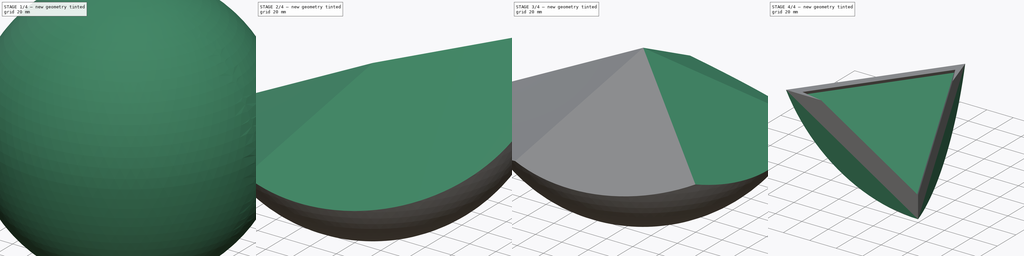
[diagram: build sequence overview — one tinted view per stage of 4, left to right]
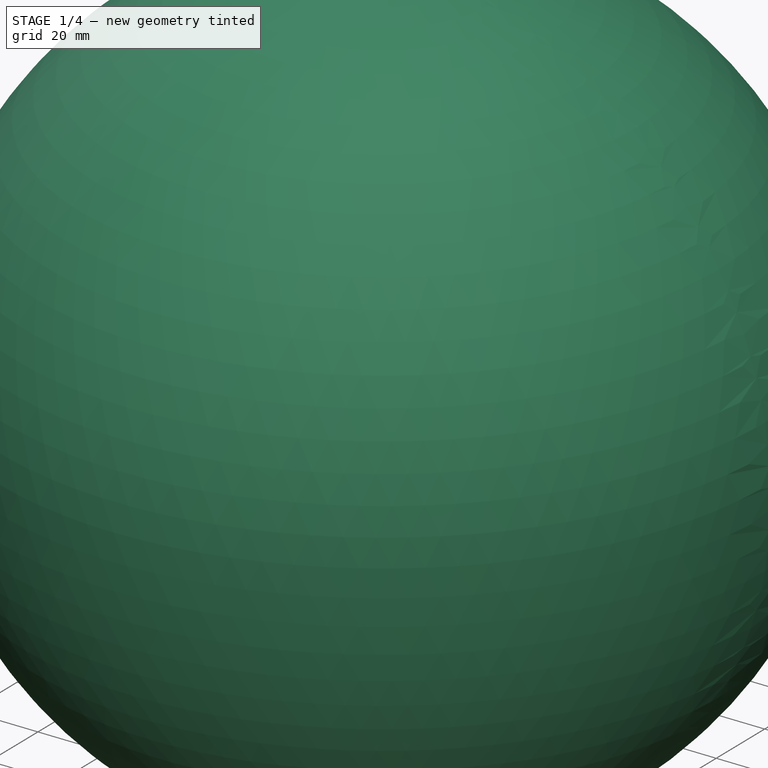
[diagram: stage 1 of 4 — iso view after this stage's code; geometry added in this stage tinted green]
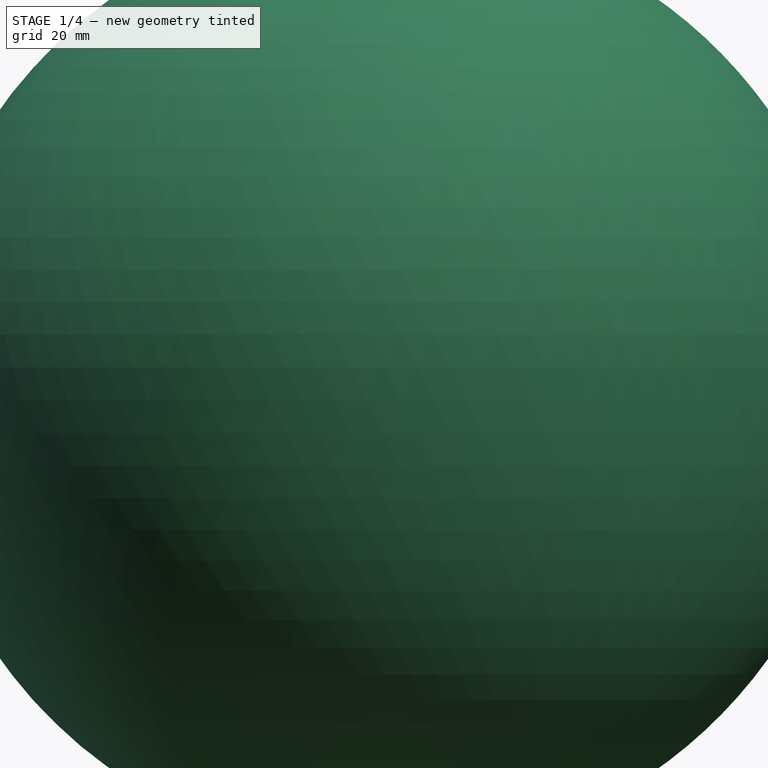
[diagram: stage 1 of 4 — front view after this stage's code; geometry added in this stage tinted green]
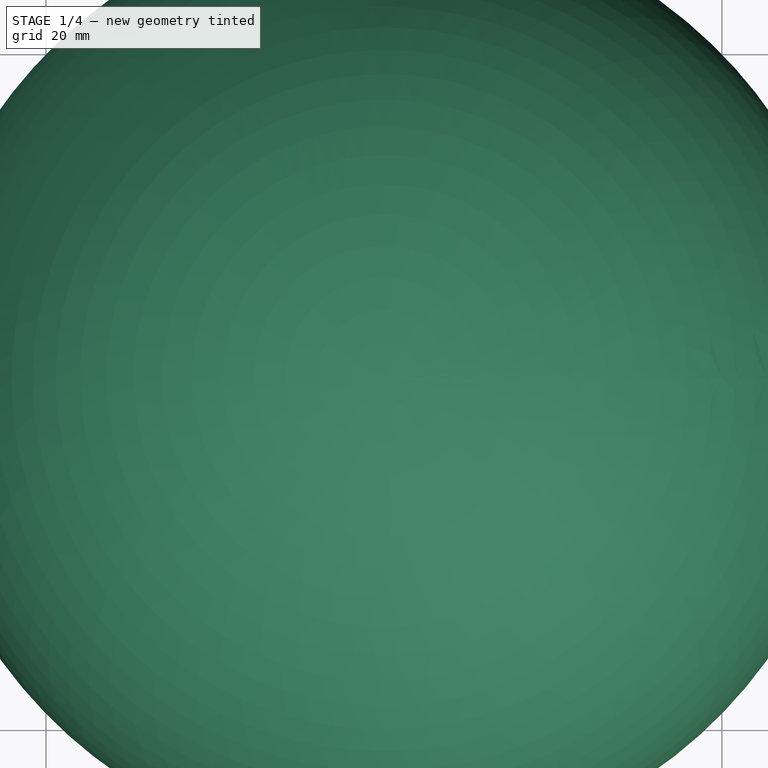
[diagram: stage 1 of 4 — top view after this stage's code; geometry added in this stage tinted green]
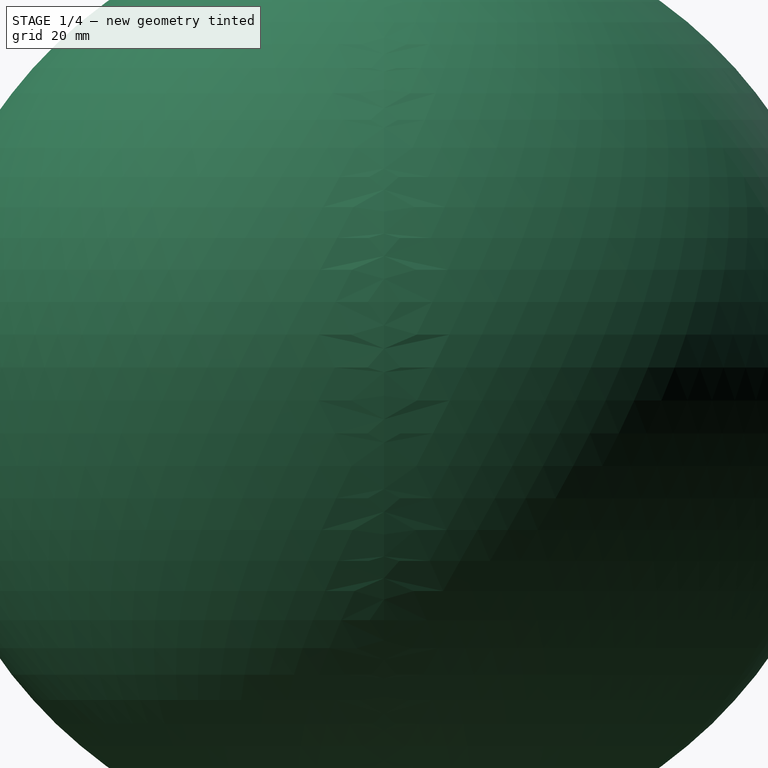
[diagram: stage 1 of 4 — right view after this stage's code; geometry added in this stage tinted green]
FCSTD DOCUMENT  (FreeCAD 0.19R24267 +99 (Git))
Label: frame
License: All rights reserved
LicenseURL: http://en.wikipedia.org/wiki/All_rights_reserved
objects: Part::Feature×17, PartDesign::SubtractiveBox×8, Part::Part2DObjectPython×5, PartDesign::Plane×3, Part::FeaturePython×3, Part::Vertex×2, Spreadsheet::Sheet×1, PartDesign::AdditiveSphere×1, PartDesign::Body×1, Sketcher::SketchObject×1, Part::Extrusion×1, Part::Cut×1, App::Part×1
note: 52 computed .brp shape members not serialized (recipe doc carries the construction recipe); baked Part::Feature solids carry a one-line shape summary decoded from their .brp

FEATURE [Part::Part2DObjectPython] Polygon  label="pentagon1"  # Draft 2D object (typed FeaturePython)
  Area = 0
  ChamferSize = 0
  DrawMode = 0
  FacesNumber = 5
  FilletRadius = 0
  MakeFace = false
  Placement = pos=(0,0,50) rot=(0,0,1;0rad)
  Radius = 100
  expr: Radius = <<Spreadsheet>>.hex_radius
  expr: .Placement.Base.z = <<Spreadsheet>>.hex_radius / 2
FEATURE [Part::Part2DObjectPython] Polygon001  label="pentagon0"  # Draft 2D object (typed FeaturePython)
  Area = 0
  ChamferSize = 0
  DrawMode = 0
  FacesNumber = 5
  FilletRadius = 0
  MakeFace = false
  Placement = pos=(0,0,-50) rot=(0,0,1;0.628319rad)
  Radius = 100
  expr: Radius = <<Spreadsheet>>.hex_radius
  expr: .Placement.Base.z = -<<Spreadsheet>>.hex_radius / 2
FEATURE [Part::Vertex] Vertex  label="center"
  AttacherType = Attacher::AttachEngine3D
  X = 0
  Y = 0
  Z = 0
FEATURE [Spreadsheet::Sheet] Spreadsheet
  cells = A4=hex_radius; C4(hex_radius)==100mm; A5=sphere_radius; C5(sphere_radius)==hex_radius / 2 * sqrt(5)
FEATURE [PartDesign::Plane] DatumPlane
  Length = 79.1419
  MapMode = 13
  Placement = pos=(-16.6667,51.2947,33.3333) rot=(0.865183,0.137031,0.482371;0.63451rad)
  ResizeMode = 0
  Support = -> [Vertex,Polygon]
  Width = 119.482
FEATURE [PartDesign::AdditiveSphere] Sphere002
  Angle1 = -90
  Angle2 = 90
  Angle3 = 360
  AttacherType = Attacher::AttachEngine3D
  Radius = 111.803
  expr: Radius = <<Spreadsheet>>.sphere_radius
FEATURE [PartDesign::Body] Body002
  Group = -> [DatumPlane,Sphere002,Box001,Box002,Box003,Box004,Box005,DatumPlane001,Box006,Box007,DatumPlane002,Box008]
  Origin = -> Origin003
  Tip = -> Box008
FEATURE [Part::Feature] Wire
  shape: bbox 180.9 x 190.2 x 2e-07 mm, 0 faces, 0 solids (baked)
FEATURE [Part::Feature] Edge
  shape: bbox 80.9 x 58.78 x 61.8 mm, 0 faces, 0 solids (baked)
FEATURE [Part::Feature] Edge001
  shape: bbox 30.9 x 95.11 x 61.8 mm, 0 faces, 0 solids (baked)
FEATURE [Part::Feature] Edge002
  shape: bbox 61.8 x 2e-07 x 100 mm, 0 faces, 0 solids (baked)
FEATURE [Part::Feature] Edge003
  shape: bbox 50 x 36.33 x 100 mm, 0 faces, 0 solids (baked)
FEATURE [Part::Feature] Edge004
  shape: bbox 100 x 2e-07 x 61.8 mm, 0 faces, 0 solids (baked)
FEATURE [Part::Feature] Edge005
  shape: bbox 30.9 x 95.11 x 61.8 mm, 0 faces, 0 solids (baked)
FEATURE [Part::Feature] Edge006
  shape: bbox 80.9 x 58.78 x 61.8 mm, 0 faces, 0 solids (baked)
FEATURE [Part::Vertex] Vertex001  label="Vertex"
  AttacherType = Attacher::AttachEngine3D
  Placement = pos=(0,0,-50) rot=(0,0,1;0rad)
  X = 0
  Y = 0
  Z = 0
FEATURE [Part::Feature] Edge007
  shape: bbox 100 x 2e-07 x 2e-07 mm, 0 faces, 0 solids (baked)
FEATURE [Part::Feature] Edge008
  shape: bbox 30.9 x 95.11 x 2e-07 mm, 0 faces, 0 solids (baked)
FEATURE [Part::Feature] Edge009
  shape: bbox 2e-07 x 2e-07 x 61.8 mm, 0 faces, 0 solids (baked)
FEATURE [Part::Feature] Face
  shape: bbox 149.3 x 155.2 x 78.15 mm, 1 faces, 0 solids (baked)
FEATURE [Part::Feature] Face001
  shape: bbox 43.87 x 135 x 106.9 mm, 1 faces, 0 solids (baked)
FEATURE [Part::Feature] Face002
  shape: bbox 142 x 2e-07 x 106.9 mm, 1 faces, 0 solids (baked)
FEATURE [Part::Feature] Face003
  shape: bbox 148 x 156.9 x 2e-07 mm, 1 faces, 0 solids (baked)
FEATURE [Part::Feature] Shell
  shape: bbox 158.3 x 164.5 x 109.9 mm, 4 faces, 0 solids (baked)
FEATURE [Part::Feature] Solid
  shape: bbox 158.3 x 164.5 x 109.9 mm, 4 faces (baked)
FEATURE [Sketcher::SketchObject] Sketch
  ExternalGeometry = -> [Wire,Solid]
  FullyConstrained = true
  MapMode = 45
  Placement = pos=(-43.6339,31.7019,-70.6011) rot=(0.532353,0.271248,0.801888;1.1321rad)
  Support = -> [Solid]
  sketch-geometry (4):
    g0: LineSegment StartX=0 StartY=-57.8716 StartZ=0 EndX=50.1183 EndY=28.9358 EndZ=0
    g1: LineSegment StartX=50.1183 StartY=28.9358 StartZ=0 EndX=-50.1183 EndY=28.9358 EndZ=0
    g2: LineSegment StartX=-50.1183 StartY=28.9358 StartZ=0 EndX=0 EndY=-57.8716 EndZ=0
    g3: Circle CenterX=0 CenterY=0 CenterZ=0 NormalX=0 NormalY=0 NormalZ=1 AngleXU=0 Radius=57.8716
  constraints (11):
    c: Coincident(g0,g1)
    c: Coincident(g1,g2)
    c: Coincident(g2,g0)
    c: Equal(g0,g1)
    c: Equal(g0,g2)
    c: PointOnObject(g0,g3)
    c: PointOnObject(g1,g3)
    c: PointOnObject(g2,g3)
    c: Coincident(g3,g-1)
    c: PointOnObject(g2,g-2)
    c: Distance(g-4,g0) = 10
FEATURE [Part::Extrusion] Extrude
  Base = -> Sketch
  Dir = (0.491123,-0.356822,0.794654)
  DirMode = 2
  FaceMakerClass = Part::FaceMakerBullseye
  LengthFwd = 100
  LengthRev = 0
  Solid = true
  Symmetric = false
FEATURE [Part::Cut] Cut
  Base = -> Solid
  Tool = -> Extrude
FEATURE [Part::FeaturePython] Point  # WARN: FeaturePython — macro-defined, semantics opaque (R4)
  Placement = pos=(-3.091e-13,-2.34e-13,-103.567) rot=(0,0,1;0rad)
  X = -3.091e-13
  Y = -2.34e-13
  Z = -103.567
FEATURE [Part::FeaturePython] Point001  # WARN: FeaturePython — macro-defined, semantics opaque (R4)
  Placement = pos=(-26.7835,82.4311,-50) rot=(0,0,1;0rad)
  X = -26.7835
  Y = 82.4311
  Z = -50
FEATURE [Part::FeaturePython] Point002  # WARN: FeaturePython — macro-defined, semantics opaque (R4)
  Placement = pos=(-86.6732,-1.604e-13,-50) rot=(0,0,1;0rad)
  X = -86.6732
  Y = -1.604e-13
  Z = -50
FEATURE [Part::Part2DObjectPython] Line  # Draft 2D object (typed FeaturePython)
  Area = 0
  ChamferSize = 0
  Closed = false
  End = (-86.6732,-1.563e-13,-50)
  FilletRadius = 0
  Length = 101.891
  MakeFace = false
  Placement = pos=(-26.7835,82.4312,-50) rot=(0,0,1;0rad)
  Points = (2) [(0,0,0),(-59.8897,-82.4312,0)]
  Start = (-26.7835,82.4312,-50)
  Subdivisions = 0
FEATURE [Part::Part2DObjectPython] Line001  # Draft 2D object (typed FeaturePython)
  Area = 0
  ChamferSize = 0
  Closed = false
  End = (-3.126e-13,-2.34e-13,-103.567)
  FilletRadius = 0
  Length = 101.891
  MakeFace = false
  Placement = pos=(-86.6732,-1.604e-13,-50) rot=(0,0,1;0rad)
  Points = (2) [(0,0,0),(86.6732,-7.62808e-14,-53.567)]
  Start = (-86.6732,-1.604e-13,-50)
  Subdivisions = 0
FEATURE [Part::Part2DObjectPython] Line002  # Draft 2D object (typed FeaturePython)
  Area = 0
  ChamferSize = 0
  Closed = false
  End = (-26.7835,82.4312,-50)
  FilletRadius = 0
  Length = 101.891
  MakeFace = false
  Placement = pos=(0,-2.34e-13,-103.567) rot=(0,0,1;0rad)
  Points = (2) [(0,0,0),(-26.7835,82.4312,53.567)]
  Start = (0,-2.34e-13,-103.567)
  Subdivisions = 0
FEATURE [App::Part] Part
  Group = -> [Polygon001,Polygon,Vertex,Point,Point001,Point002,Line,Line001,Line002]
  Origin = -> Origin001
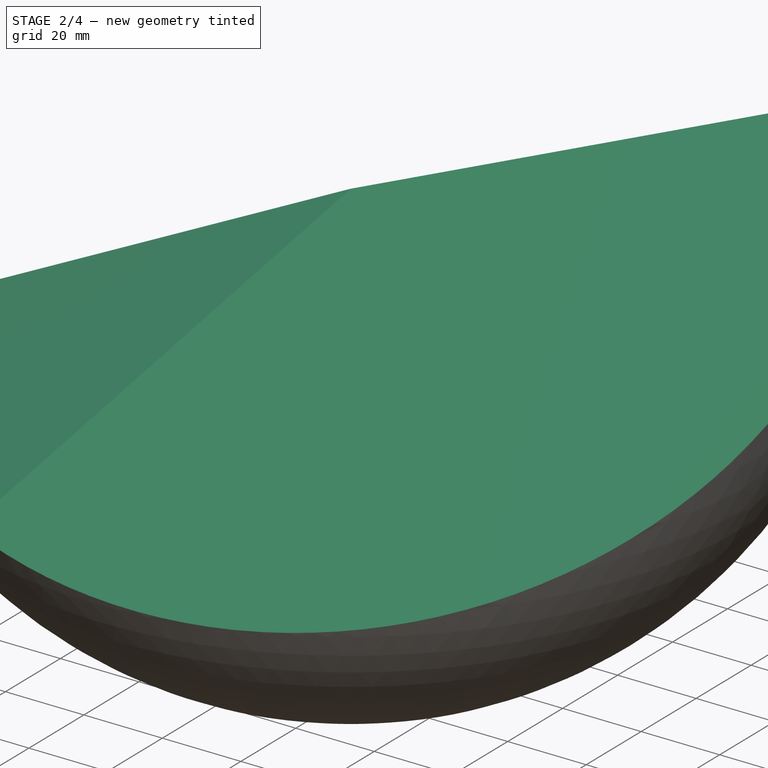
[diagram: stage 2 of 4 — iso view after this stage's code; geometry added in this stage tinted green]
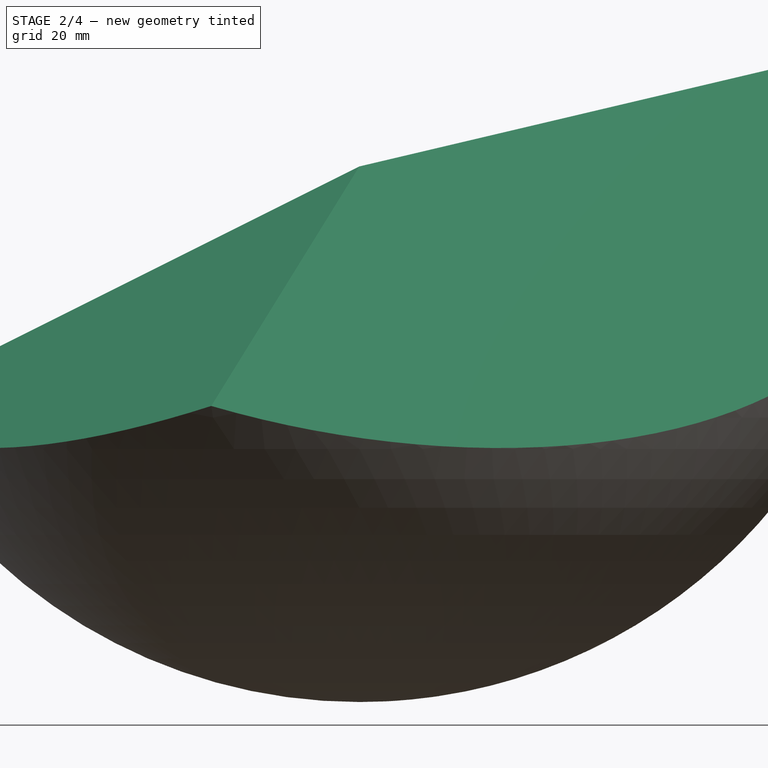
[diagram: stage 2 of 4 — front view after this stage's code; geometry added in this stage tinted green]
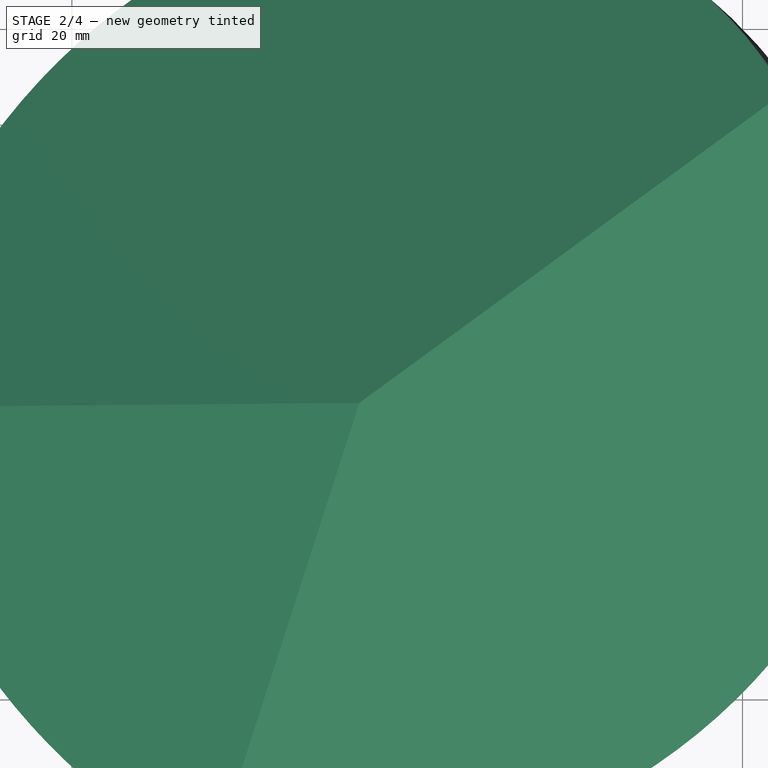
[diagram: stage 2 of 4 — top view after this stage's code; geometry added in this stage tinted green]
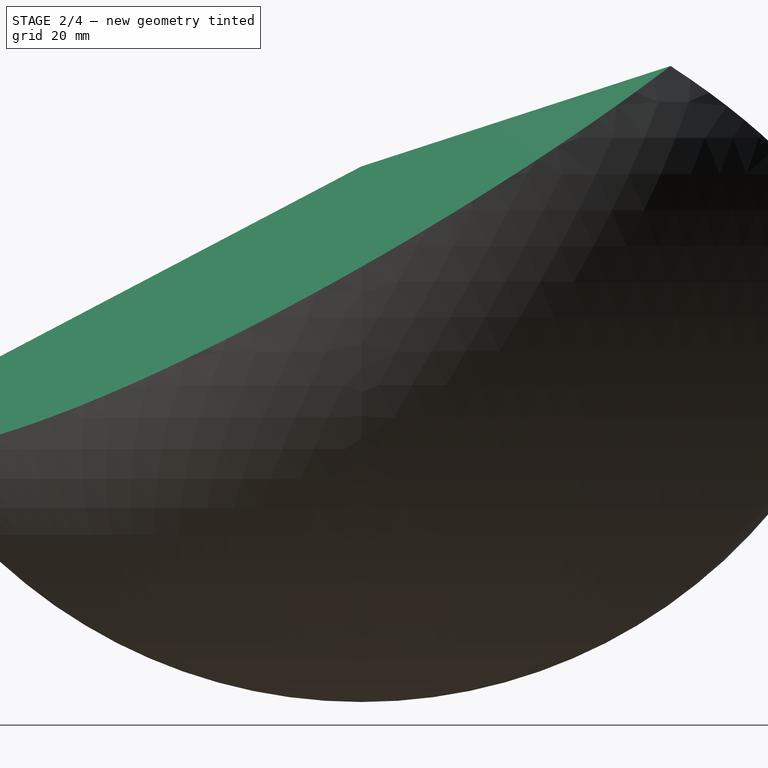
[diagram: stage 2 of 4 — right view after this stage's code; geometry added in this stage tinted green]
FEATURE [PartDesign::SubtractiveBox] Box001
  AttacherType = Attacher::AttachEngine3D
  AttachmentOffset = pos=(-200,-200,0) rot=(0,0,1;0rad)
  BaseFeature = -> Sphere002
  Height = 400
  Length = 400
  MapMode = 5
  Placement = pos=(-154.305,-172.312,-71.8129) rot=(0.865183,0.137031,0.482371;0.63451rad)
  Support = -> [DatumPlane]
  Width = 400
FEATURE [PartDesign::SubtractiveBox] Box002
  AttacherType = Attacher::AttachEngine3D
  AttachmentOffset = pos=(-200,-200,0) rot=(0,0,1;0rad)
  BaseFeature = -> Box001
  Height = 400
  Length = 400
  MapMode = 13
  Placement = pos=(-298.829,30.1015,-138.48) rot=(0.472633,-0.240819,-0.847717;1.08239rad)
  Support = -> [Vertex,Polygon001]
  Width = 400
FEATURE [PartDesign::SubtractiveBox] Box003
  AttacherType = Attacher::AttachEngine3D
  AttachmentOffset = pos=(-200,-200,0) rot=(0,0,1;0rad)
  BaseFeature = -> Box002
  Height = 400
  Length = 400
  MapMode = 13
  Placement = pos=(-63.715,293.505,-138.48) rot=(-0.137906,0.270656,0.952747;4.04547rad)
  Support = -> [Vertex,Polygon001]
  Width = 400
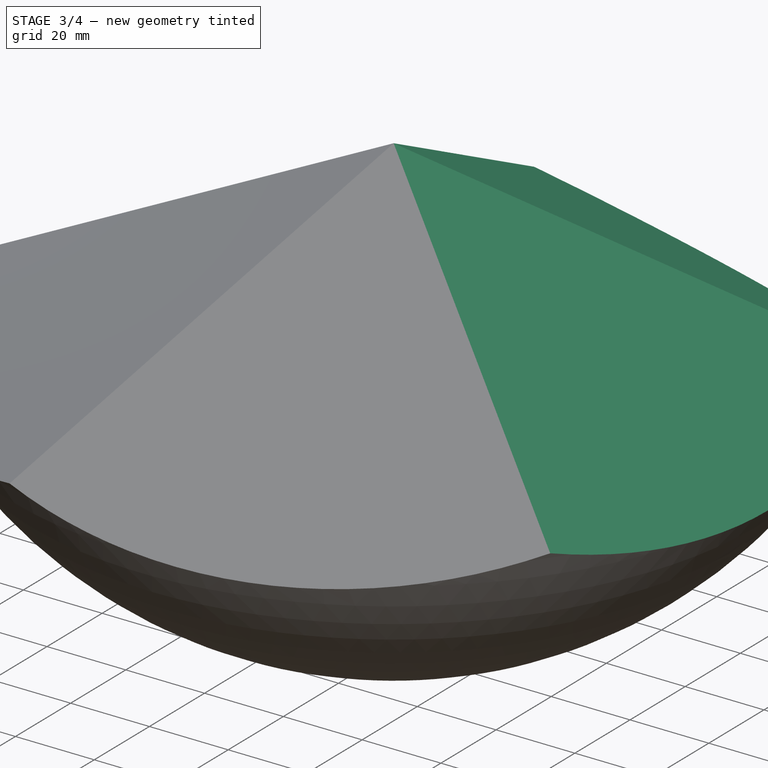
[diagram: stage 3 of 4 — iso view after this stage's code; geometry added in this stage tinted green]
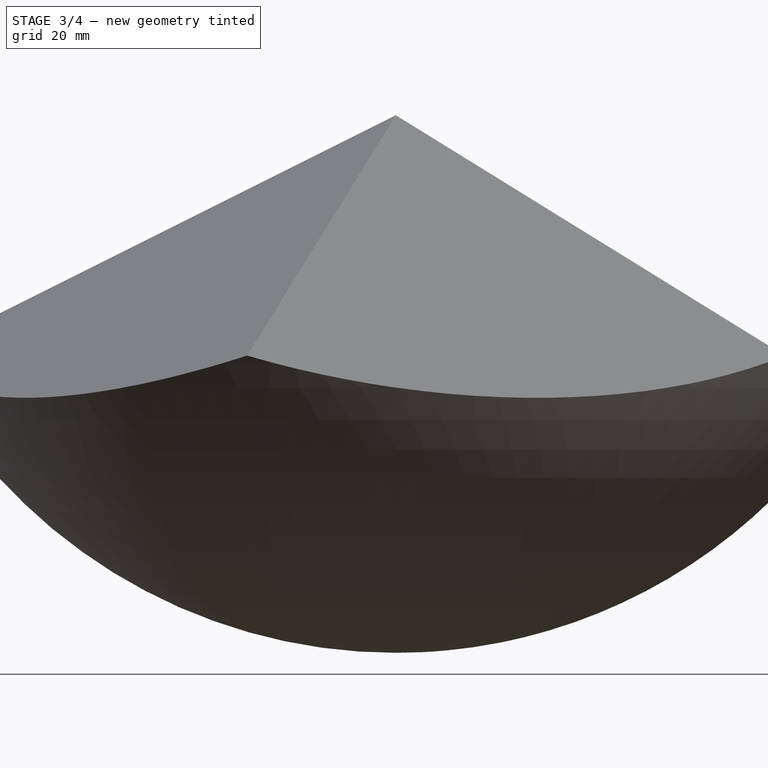
[diagram: stage 3 of 4 — front view after this stage's code; geometry added in this stage tinted green]
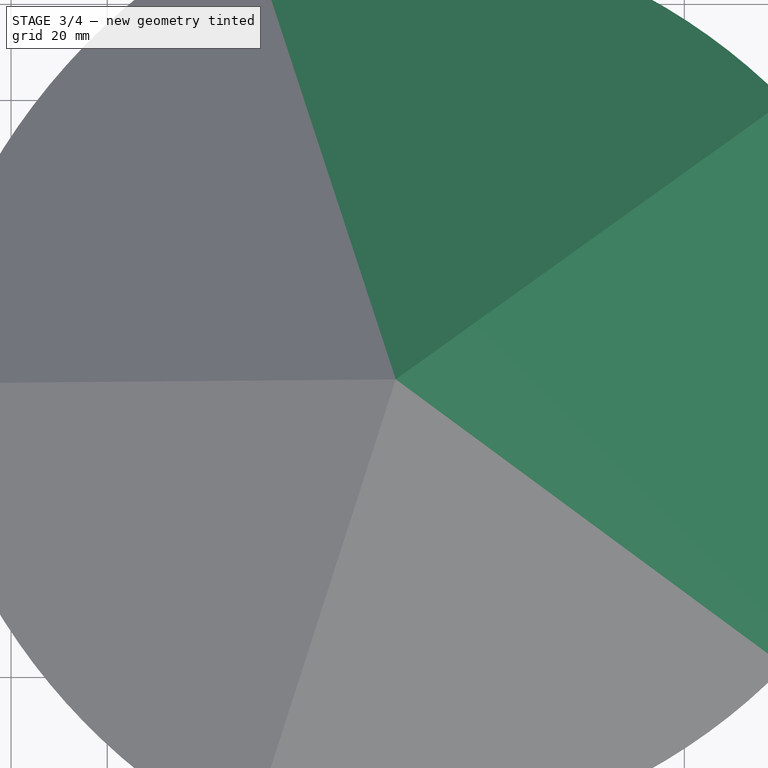
[diagram: stage 3 of 4 — top view after this stage's code; geometry added in this stage tinted green]
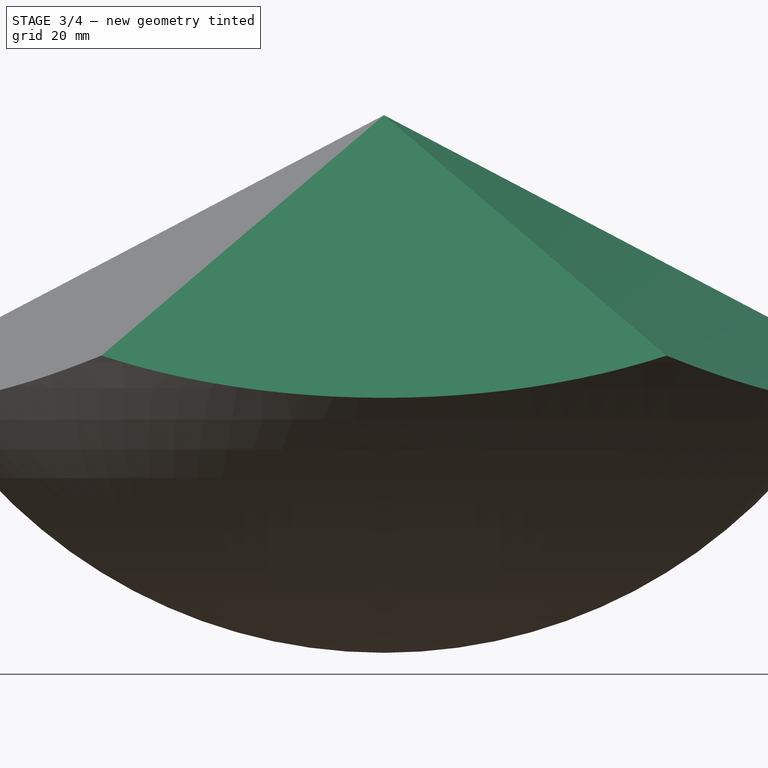
[diagram: stage 3 of 4 — right view after this stage's code; geometry added in this stage tinted green]
FEATURE [PartDesign::SubtractiveBox] Box004
  AttacherType = Attacher::AttachEngine3D
  AttachmentOffset = pos=(-200,-200,0) rot=(0,0,1;0rad)
  BaseFeature = -> Box003
  Height = 400
  Length = 400
  MapMode = 13
  Placement = pos=(259.451,151.295,-138.48) rot=(0.043241,0.273011,0.961039;2.83948rad)
  Support = -> [Vertex,Polygon001]
  Width = 400
FEATURE [PartDesign::SubtractiveBox] Box005
  AttacherType = Attacher::AttachEngine3D
  AttachmentOffset = pos=(-200,-200,0) rot=(0,0,1;0rad)
  BaseFeature = -> Box004
  Height = 400
  Length = 400
  MapMode = 13
  Placement = pos=(224.065,-200,-138.48) rot=(0.263602,0.263602,0.927916;1.64554rad)
  Support = -> [Vertex,Polygon001]
  Width = 400
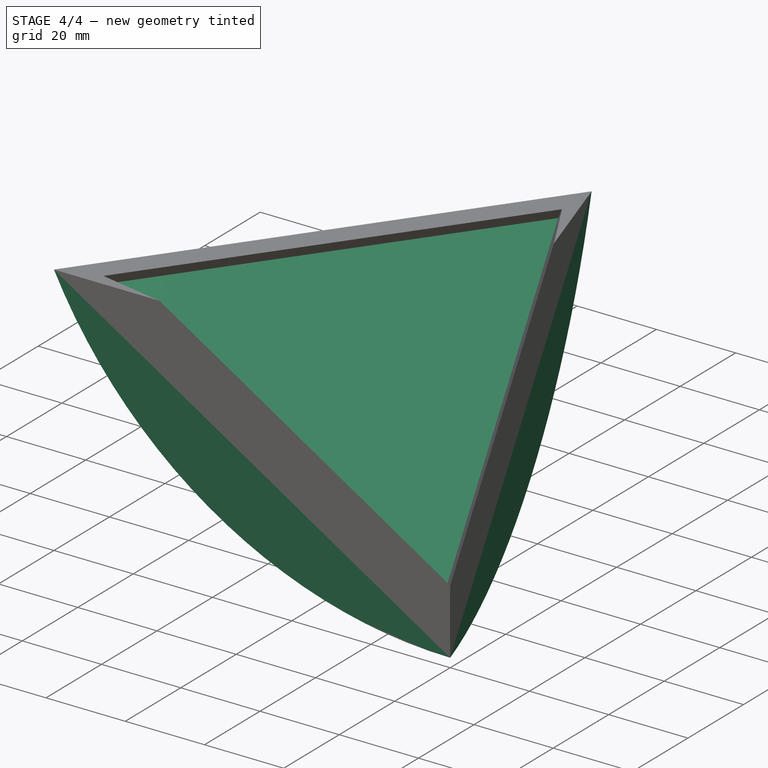
[diagram: stage 4 of 4 — iso view after this stage's code; geometry added in this stage tinted green]
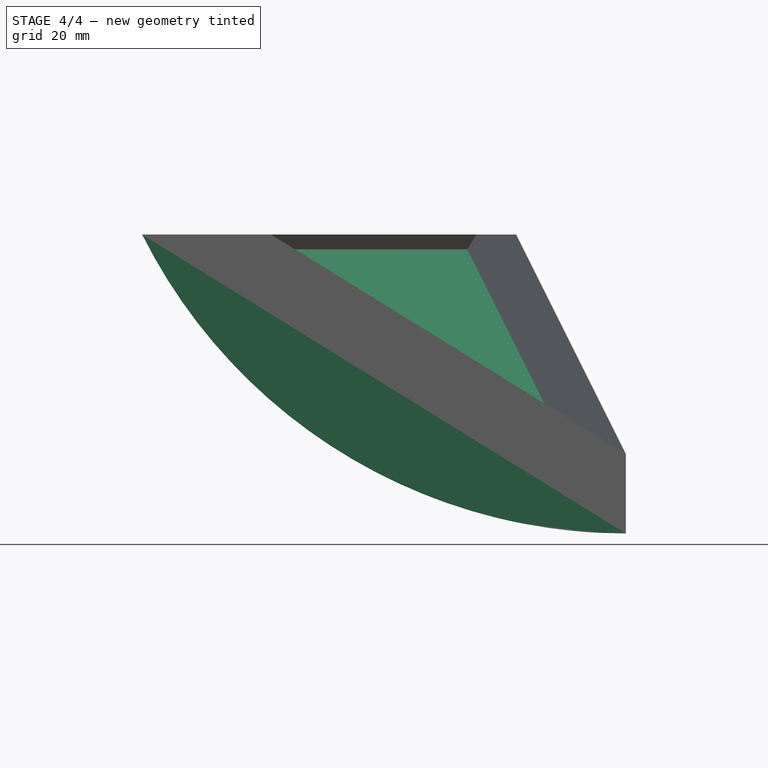
[diagram: stage 4 of 4 — front view after this stage's code; geometry added in this stage tinted green]
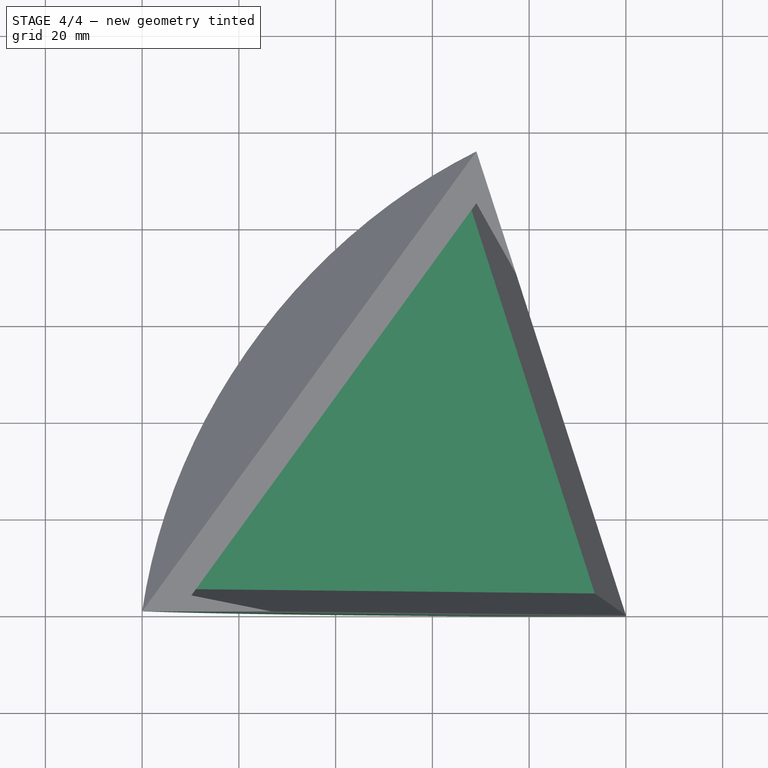
[diagram: stage 4 of 4 — top view after this stage's code; geometry added in this stage tinted green]
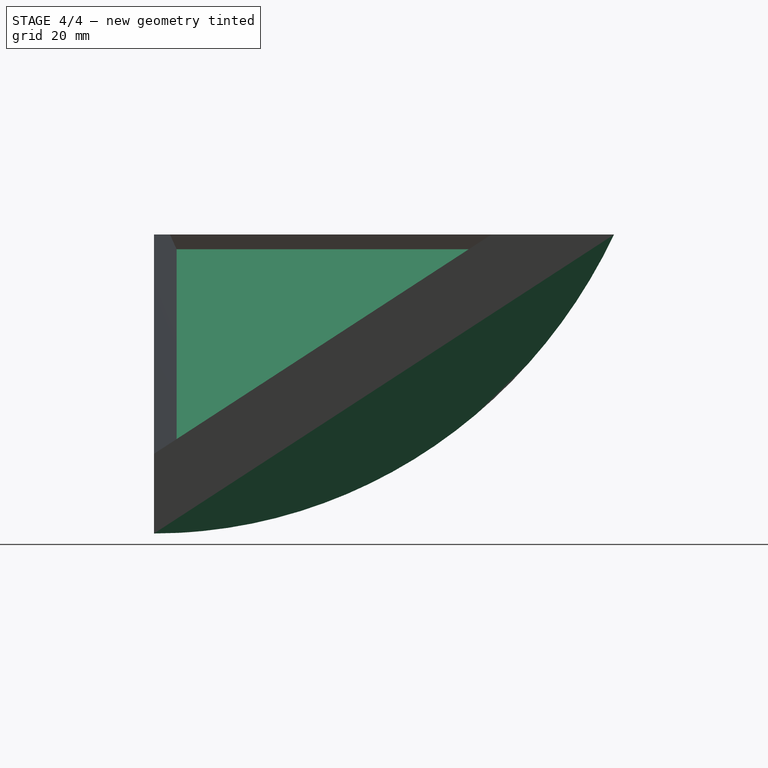
[diagram: stage 4 of 4 — right view after this stage's code; geometry added in this stage tinted green]
FEATURE [PartDesign::Plane] DatumPlane001
  Length = 71.9046
  MapMode = 13
  Placement = pos=(-33.3333,-1.99e-13,-53.9345) rot=(1,0,0;1.5708rad)
  ResizeMode = 0
  Support = -> [Box005,Vertex]
  Width = 92.5058
FEATURE [PartDesign::SubtractiveBox] Box006
  AttacherType = Attacher::AttachEngine3D
  AttachmentOffset = pos=(-200,-200,0) rot=(0,0,1;0rad)
  BaseFeature = -> Box005
  Height = 400
  Length = 400
  MapMode = 5
  Placement = pos=(-233.333,-1.1297e-12,-253.934) rot=(1,0,0;1.5708rad)
  Support = -> [DatumPlane001]
  Width = 400
FEATURE [PartDesign::SubtractiveBox] Box007
  AttacherType = Attacher::AttachEngine3D
  AttachmentOffset = pos=(-200,-200,0) rot=(0,0,1;0rad)
  BaseFeature = -> Box006
  Height = 400
  Length = 400
  MapMode = 13
  Placement = pos=(51.5028,-158.509,-253.934) rot=(0.456966,0.62896,0.62896;2.28433rad)
  Support = -> [Vertex,Box006,Polygon001]
  Width = 400
FEATURE [PartDesign::Plane] DatumPlane002
  Length = 85.3268
  MapMode = 13
  Placement = pos=(-43.6339,31.7019,-70.6011) rot=(-0.434677,0.853102,0.288571;3.43357rad)
  ResizeMode = 0
  Support = -> [Box007]
  Width = 101.339
FEATURE [PartDesign::SubtractiveBox] Box008
  AttacherType = Attacher::AttachEngine3D
  AttachmentOffset = pos=(-100,-100,0) rot=(0,0,1;0rad)
  BaseFeature = -> Box007
  Height = 100
  Length = 200
  MapMode = 5
  Placement = pos=(-38.1235,-95.9084,-131.307) rot=(0.532353,0.271248,0.801888;1.1321rad)
  Support = -> [DatumPlane002]
  Width = 200
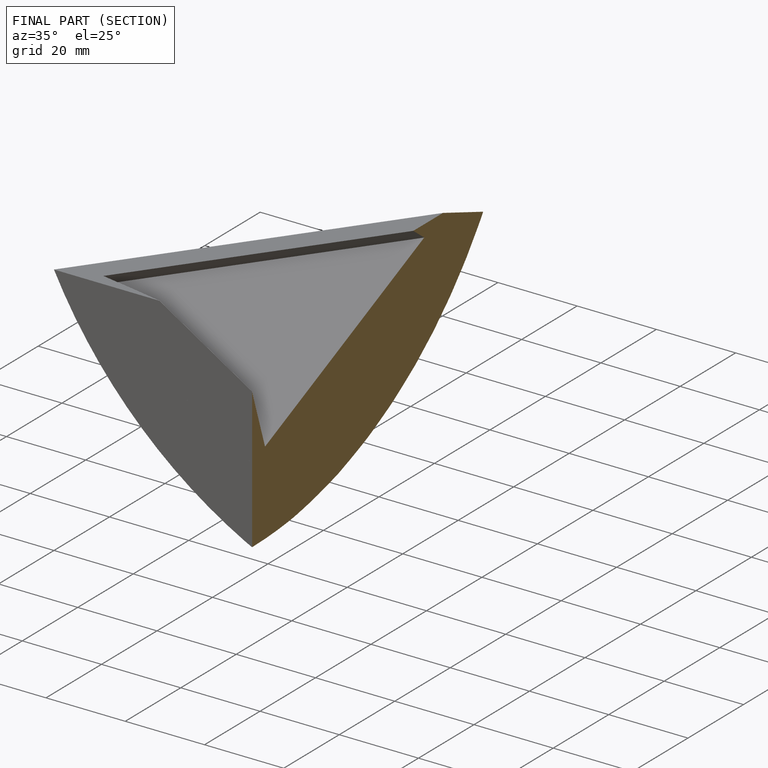
[diagram: finished part — half-section view (interior)]
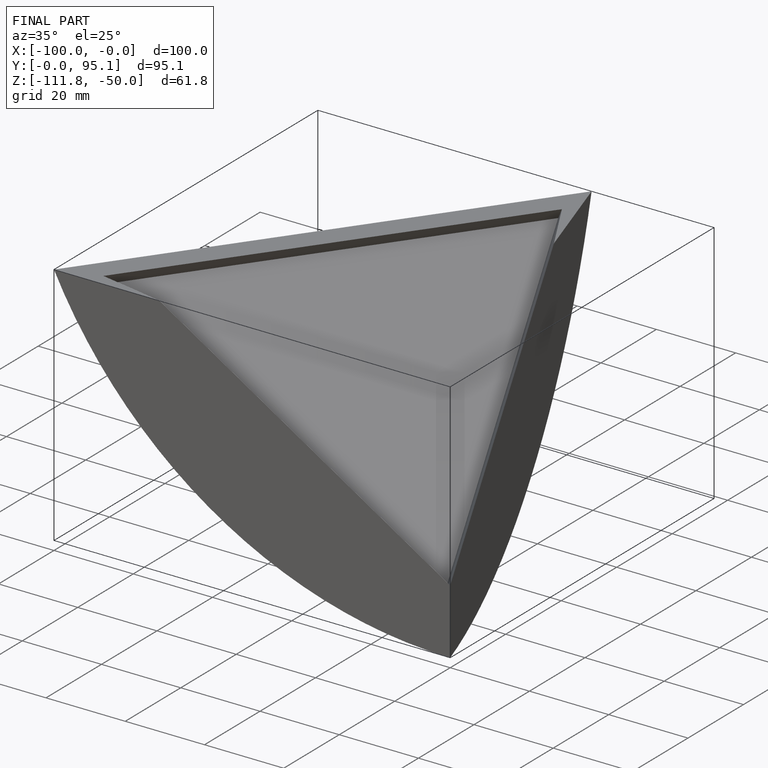
[diagram: finished part — iso view with bounding-box wireframe]
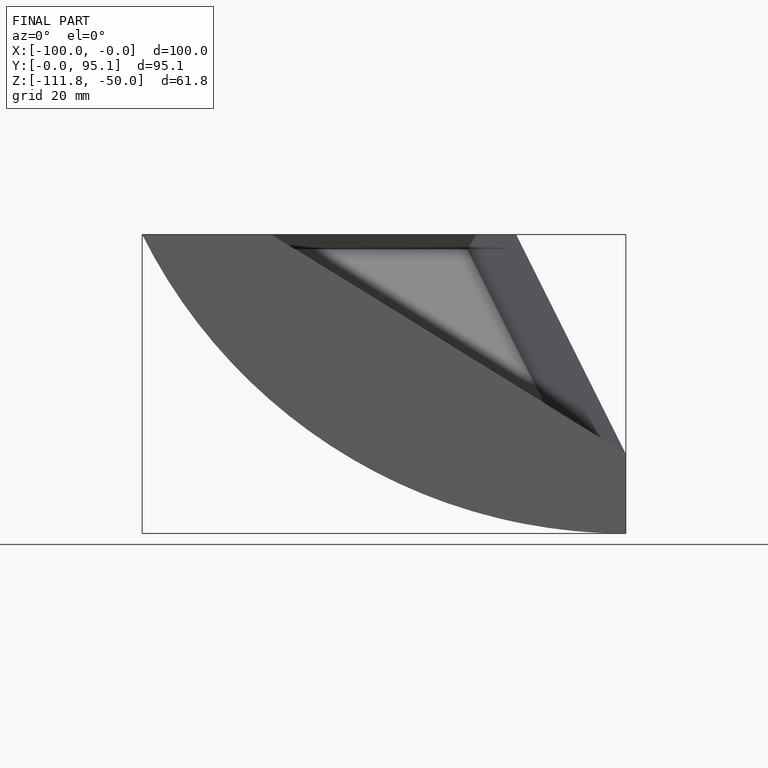
[diagram: finished part — front view with bounding-box wireframe]
